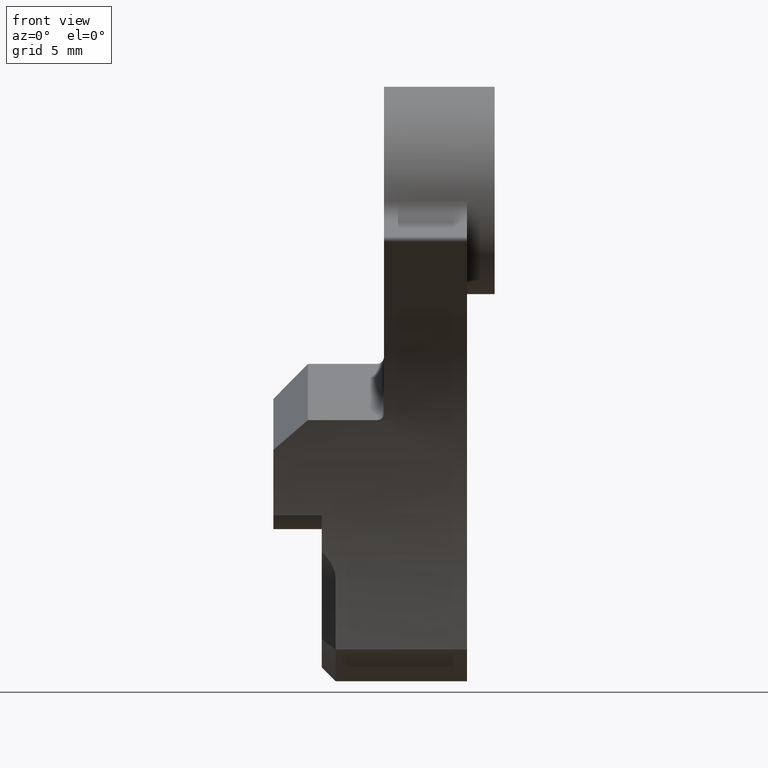
[diagram: clean part render]
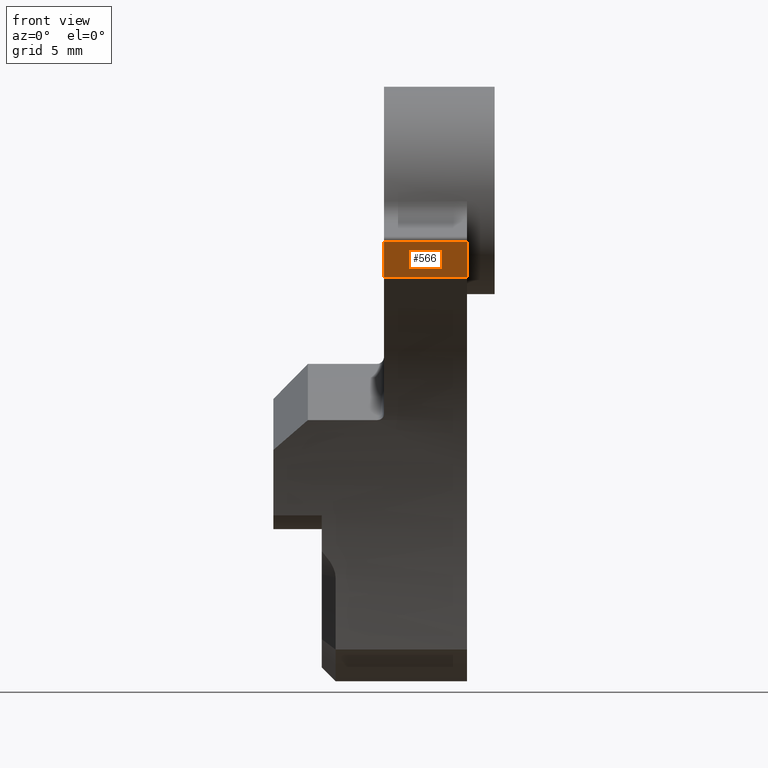
[diagram: same view with one face highlighted and labeled with its STEP entity id]
A machine part, front view. The second image highlights one B-rep face of the part: STEP entity #566.
In plain terms, the highlighted planar face has unit normal (0, 0.7193, 0.6947).
Its self-contained STEP definition (entity closure, byte-faithful):
#9 = EDGE_LOOP ( 'NONE', ( #1168, #506, #819, #766 ) ) ;
#13 = DIRECTION ( 'NONE',  ( -1.000000000000000000, 0.0000000000000000000, 0.0000000000000000000 ) ) ;
#84 = FACE_OUTER_BOUND ( 'NONE', #9, .T. ) ;
#105 = DIRECTION ( 'NONE',  ( 0.0000000000000000000, 0.6946583704589994700, -0.7193398003386489700 ) ) ;
#113 = CARTESIAN_POINT ( 'NONE',  ( -10.25000000000000000, -38.46647759353570700, 31.78111409114066500 ) ) ;
#166 = CARTESIAN_POINT ( 'NONE',  ( -10.25000000000000000, -38.75838152966954200, 32.08338946572203600 ) ) ;
#242 = VECTOR ( 'NONE', #105, 1000.000000000000100 ) ;
#290 = EDGE_CURVE ( 'NONE', #927, #947, #960, .T. ) ;
#301 = VECTOR ( 'NONE', #1157, 1000.000000000000000 ) ;
#357 = LINE ( 'NONE', #1198, #242 ) ;
#450 = CARTESIAN_POINT ( 'NONE',  ( -0.5000000000000004400, -38.46647759353570700, 31.78111409114066500 ) ) ;
#459 = LINE ( 'NONE', #113, #589 ) ;
#506 = ORIENTED_EDGE ( 'NONE', *, *, #1362, .T. ) ;
#566 = ADVANCED_FACE ( 'NONE', ( #84 ), #1134, .F. ) ;
#589 = VECTOR ( 'NONE', #13, 1000.000000000000000 ) ;
#599 = DIRECTION ( 'NONE',  ( 4.353928600885728200E-017, -0.6946583704589994700, 0.7193398003386489700 ) ) ;
#603 = CARTESIAN_POINT ( 'NONE',  ( -10.25000000000000000, -35.97974804783353900, 29.20603026436744200 ) ) ;
#617 = AXIS2_PLACEMENT_3D ( 'NONE', #166, #748, #767 ) ;
#691 = CARTESIAN_POINT ( 'NONE',  ( 5.500000000000005300, -35.97974804783353900, 29.20603026436744200 ) ) ;
#722 = CARTESIAN_POINT ( 'NONE',  ( 5.500000000000005300, -38.75838152966954200, 32.08338946572203600 ) ) ;
#748 = DIRECTION ( 'NONE',  ( 0.0000000000000000000, 0.7193398003386490800, 0.6946583704589995900 ) ) ;
#766 = ORIENTED_EDGE ( 'NONE', *, *, #290, .T. ) ;
#767 = DIRECTION ( 'NONE',  ( 0.0000000000000000000, -0.6946583704589994700, 0.7193398003386489700 ) ) ;
#795 = CARTESIAN_POINT ( 'NONE',  ( -0.5000000000000004400, -35.97974804783353900, 29.20603026436743500 ) ) ;
#819 = ORIENTED_EDGE ( 'NONE', *, *, #1324, .T. ) ;
#927 = VERTEX_POINT ( 'NONE', #795 ) ;
#947 = VERTEX_POINT ( 'NONE', #691 ) ;
#960 = LINE ( 'NONE', #603, #301 ) ;
#1045 = VECTOR ( 'NONE', #599, 1000.000000000000100 ) ;
#1082 = VERTEX_POINT ( 'NONE', #1184 ) ;
#1089 = EDGE_CURVE ( 'NONE', #947, #1082, #1274, .T. ) ;
#1134 = PLANE ( 'NONE',  #617 ) ;
#1157 = DIRECTION ( 'NONE',  ( 1.000000000000000000, -0.0000000000000000000, -0.0000000000000000000 ) ) ;
#1168 = ORIENTED_EDGE ( 'NONE', *, *, #1089, .T. ) ;
#1184 = CARTESIAN_POINT ( 'NONE',  ( 5.500000000000005300, -38.46647759353570700, 31.78111409114066500 ) ) ;
#1198 = CARTESIAN_POINT ( 'NONE',  ( -0.5000000000000004400, -38.75838152966954200, 32.08338946572203600 ) ) ;
#1222 = VERTEX_POINT ( 'NONE', #450 ) ;
#1274 = LINE ( 'NONE', #722, #1045 ) ;
#1324 = EDGE_CURVE ( 'NONE', #1222, #927, #357, .T. ) ;
#1362 = EDGE_CURVE ( 'NONE', #1082, #1222, #459, .T. ) ;